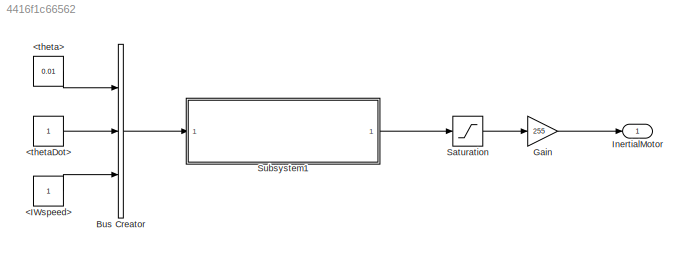
MODEL slx_4416f1c66562
KIND model
CONFIG AbsTol = auto
CONFIG EnableMultiTasking = on
CONFIG FixedStep = auto
CONFIG MaxStep = auto
CONFIG MinStep = auto
CONFIG RelTol = 1e-3
CONFIG SampleTimeConstraint = Unconstrained
CONFIG SolverName = FixedStepAuto
CONFIG StartTime = 0.0
CONFIG StopTime = inf
BLOCK [Constant] <IWspeed>
BLOCK [Constant] <theta>
  Value = 0.01
BLOCK [Constant] <thetaDot>
BLOCK [BusCreator] Bus Creator
  DisplayOption = bar
  InheritFromInputs = on
  Inputs = 3
  Ports = [3, 1]
BLOCK [Gain] Gain
  Gain = 255
BLOCK [Outport] InertialMotor
BLOCK [Saturate] Saturation
  LowerLimit = -1
  UpperLimit = 1
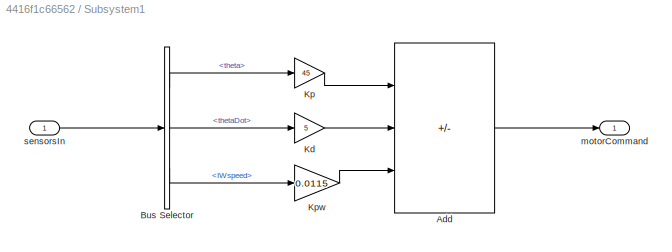
BLOCK [SubSystem] Subsystem1
  Ports = [1, 1]
  RequestExecContextInheritance = off
BLOCK [Sum] Subsystem1/Add
  IconShape = rectangular
  Inputs = ++-
  Ports = [3, 1]
BLOCK [BusSelector] Subsystem1/Bus Selector
  OutputSignals = theta,thetaDot,IWspeed
  Ports = [1, 3]
BLOCK [Gain] Subsystem1/Kd
  Gain = 5
BLOCK [Gain] Subsystem1/Kp
  Gain = 45
BLOCK [Gain] Subsystem1/Kpw
  Gain = 0.0115
BLOCK [Outport] Subsystem1/motorCommand
BLOCK [Inport] Subsystem1/sensorsIn
LINE <IWspeed>:1 -> Bus Creator:3
LINE <theta>:1 -> Bus Creator:1
LINE <thetaDot>:1 -> Bus Creator:2
LINE Bus Creator:1 -> Subsystem1:1
LINE Gain:1 -> InertialMotor:1
LINE Saturation:1 -> Gain:1
LINE Subsystem1/Add:1 -> Subsystem1/motorCommand:1
LINE Subsystem1/Bus Selector:1 -> Subsystem1/Kp:1
LINE Subsystem1/Bus Selector:2 -> Subsystem1/Kd:1
LINE Subsystem1/Bus Selector:3 -> Subsystem1/Kpw:1
LINE Subsystem1/Kd:1 -> Subsystem1/Add:2
LINE Subsystem1/Kp:1 -> Subsystem1/Add:1
LINE Subsystem1/Kpw:1 -> Subsystem1/Add:3
LINE Subsystem1/sensorsIn:1 -> Subsystem1/Bus Selector:1
LINE Subsystem1:1 -> Saturation:1
